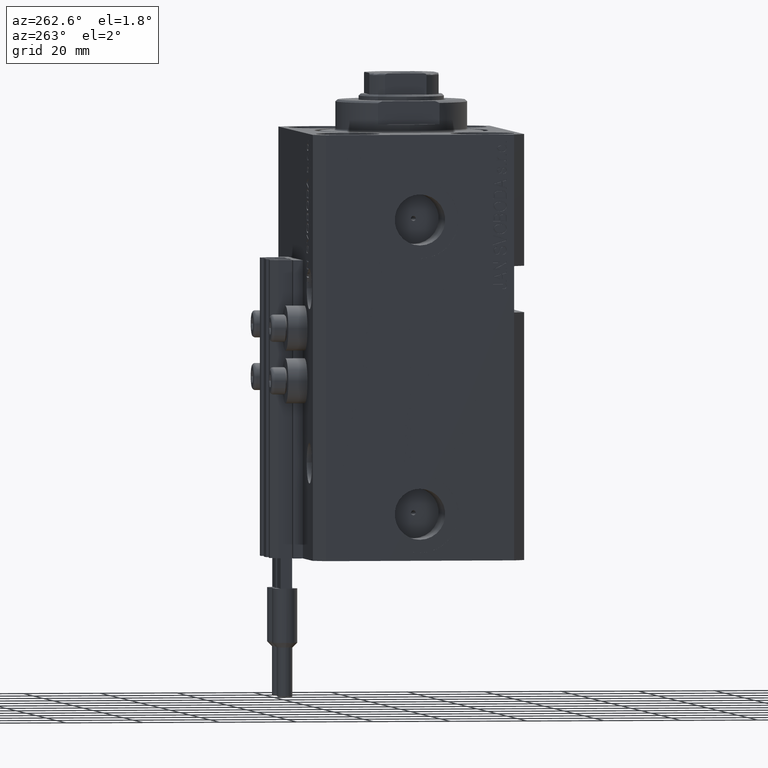
[diagram: clean part render]
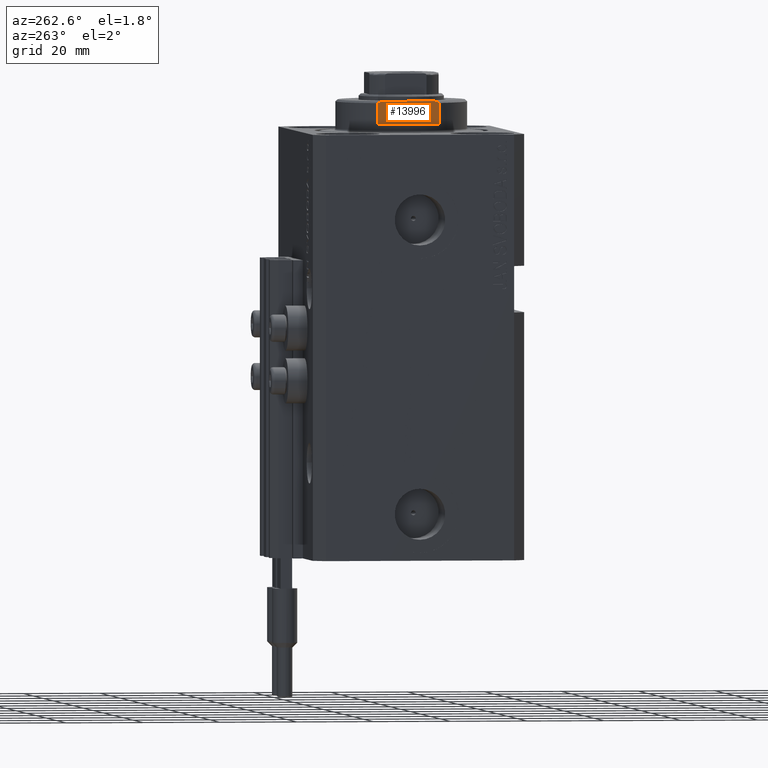
[diagram: same view with one face highlighted and labeled with its STEP entity id]
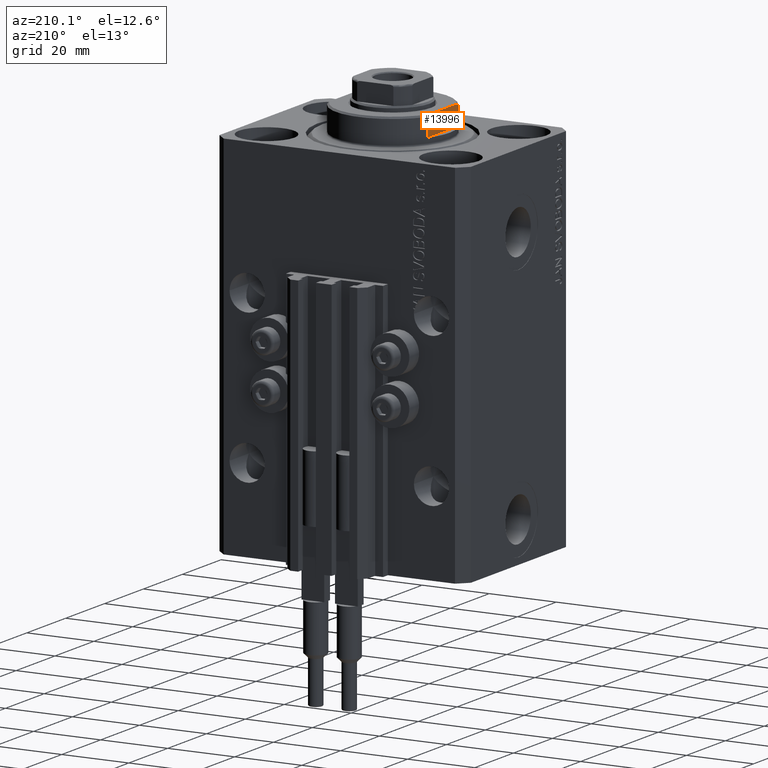
[diagram: same view with one face highlighted and labeled with its STEP entity id]
A machine part, auxiliary view. The second image highlights one B-rep face of the part: STEP entity #13996.
A second angle (auxiliary view) of the same face is appended — the face is thin or edge-on in the first view.
In plain terms, the highlighted planar face has unit normal (-1, 0, 0).
Its self-contained STEP definition (entity closure, byte-faithful):
#1637 = VERTEX_POINT ( 'NONE', #20136 ) ;
#2692 = VERTEX_POINT ( 'NONE', #41071 ) ;
#4328 = ORIENTED_EDGE ( 'NONE', *, *, #19285, .F. ) ;
#4678 = LINE ( 'NONE', #45575, #20527 ) ;
#4752 = CARTESIAN_POINT ( 'NONE',  ( 15.00000000000000000, -42.42640687119285303, -2.000000000000000000 ) ) ;
#5629 = LINE ( 'NONE', #11031, #27397 ) ;
#5700 = EDGE_CURVE ( 'NONE', #12038, #1637, #4678, .T. ) ;
#6044 = VECTOR ( 'NONE', #18223, 1000.000000000000000 ) ;
#7097 = CARTESIAN_POINT ( 'NONE',  ( 14.99999999999999645, 6.873863542433765517, -8.000000000000000000 ) ) ;
#8295 = ORIENTED_EDGE ( 'NONE', *, *, #46612, .F. ) ;
#8849 = VERTEX_POINT ( 'NONE', #39998 ) ;
#11031 = CARTESIAN_POINT ( 'NONE',  ( 15.00000000000000000, -42.42640687119285303, -8.000000000000000000 ) ) ;
#11435 = CARTESIAN_POINT ( 'NONE',  ( 15.00000000000000000, -8.000000000000001776, -7.500000000000007105 ) ) ;
#11914 = DIRECTION ( 'NONE',  ( -0.000000000000000000, 0.000000000000000000, -1.000000000000000000 ) ) ;
#12038 = VERTEX_POINT ( 'NONE', #41663 ) ;
#12286 = EDGE_CURVE ( 'NONE', #2692, #28336, #40872, .T. ) ;
#13768 = ORIENTED_EDGE ( 'NONE', *, *, #5700, .T. ) ;
#13996 = ADVANCED_FACE ( 'NONE', ( #38737 ), #15601, .T. ) ;
#14474 = B_SPLINE_CURVE_WITH_KNOTS ( 'NONE', 3,
 ( #33197, #41320, #26261, #7097 ),
 .UNSPECIFIED., .F., .F.,
 ( 4, 4 ),
 ( 0.03336039268697043453, 0.03459498301323849639 ),
 .UNSPECIFIED. ) ;
#15086 = EDGE_CURVE ( 'NONE', #1637, #2692, #23733, .T. ) ;
#15601 = PLANE ( 'NONE',  #19492 ) ;
#16600 = CARTESIAN_POINT ( 'NONE',  ( 15.00000000000000000, -42.42640687119285303, -2.000000000000000000 ) ) ;
#17723 = B_SPLINE_CURVE_WITH_KNOTS ( 'NONE', 3,
 ( #22756, #45421, #25944, #11435 ),
 .UNSPECIFIED., .F., .F.,
 ( 4, 4 ),
 ( 0.04875332532859059237, 0.04998905627745663105 ),
 .UNSPECIFIED. ) ;
#18223 = DIRECTION ( 'NONE',  ( 0.000000000000000000, 0.000000000000000000, -1.000000000000000000 ) ) ;
#19285 = EDGE_CURVE ( 'NONE', #8849, #44273, #5629, .T. ) ;
#19492 = AXIS2_PLACEMENT_3D ( 'NONE', #4752, #30606, #11914 ) ;
#20136 = CARTESIAN_POINT ( 'NONE',  ( 14.99999999999999645, 8.000000000000003553, -2.000000000000000000 ) ) ;
#20298 = EDGE_CURVE ( 'NONE', #12038, #8849, #14474, .T. ) ;
#20527 = VECTOR ( 'NONE', #30283, 1000.000000000000000 ) ;
#22734 = EDGE_LOOP ( 'NONE', ( #13768, #43662, #24546, #8295, #4328, #46303 ) ) ;
#22756 = CARTESIAN_POINT ( 'NONE',  ( 14.99999999999999645, -6.873863542433765517, -8.000000000000000000 ) ) ;
#23733 = LINE ( 'NONE', #16600, #36038 ) ;
#24546 = ORIENTED_EDGE ( 'NONE', *, *, #12286, .T. ) ;
#25944 = CARTESIAN_POINT ( 'NONE',  ( 15.00000000000000000, -7.629305121525812083, -7.674444648693743432 ) ) ;
#26261 = CARTESIAN_POINT ( 'NONE',  ( 15.00000000000000000, 7.253126193285932111, -7.842000017654665811 ) ) ;
#26787 = CARTESIAN_POINT ( 'NONE',  ( 15.00000000000000000, -8.000000000000001776, -8.000000000000000000 ) ) ;
#27397 = VECTOR ( 'NONE', #36643, 1000.000000000000000 ) ;
#28336 = VERTEX_POINT ( 'NONE', #29969 ) ;
#29969 = CARTESIAN_POINT ( 'NONE',  ( 15.00000000000000000, -8.000000000000001776, -7.500000000000007105 ) ) ;
#30283 = DIRECTION ( 'NONE',  ( -0.000000000000000000, -0.000000000000000000, 1.000000000000000000 ) ) ;
#30606 = DIRECTION ( 'NONE',  ( 1.000000000000000000, 0.000000000000000000, -0.000000000000000000 ) ) ;
#33197 = CARTESIAN_POINT ( 'NONE',  ( 15.00000000000000000, 8.000000000000001776, -7.500000000000007105 ) ) ;
#36038 = VECTOR ( 'NONE', #45667, 1000.000000000000000 ) ;
#36643 = DIRECTION ( 'NONE',  ( 0.000000000000000000, -1.000000000000000000, -0.000000000000000000 ) ) ;
#38737 = FACE_OUTER_BOUND ( 'NONE', #22734, .T. ) ;
#39998 = CARTESIAN_POINT ( 'NONE',  ( 14.99999999999999645, 6.873863542433765517, -8.000000000000000000 ) ) ;
#40872 = LINE ( 'NONE', #26787, #6044 ) ;
#41071 = CARTESIAN_POINT ( 'NONE',  ( 14.99999999999999645, -8.000000000000003553, -2.000000000000000000 ) ) ;
#41320 = CARTESIAN_POINT ( 'NONE',  ( 15.00000000000000000, 7.628315461082481264, -7.674910371255307062 ) ) ;
#41663 = CARTESIAN_POINT ( 'NONE',  ( 15.00000000000000000, 8.000000000000001776, -7.500000000000007105 ) ) ;
#42562 = CARTESIAN_POINT ( 'NONE',  ( 14.99999999999999645, -6.873863542433765517, -8.000000000000000000 ) ) ;
#43662 = ORIENTED_EDGE ( 'NONE', *, *, #15086, .T. ) ;
#44273 = VERTEX_POINT ( 'NONE', #42562 ) ;
#45421 = CARTESIAN_POINT ( 'NONE',  ( 15.00000000000000000, -7.254193676168129379, -7.841555306644510281 ) ) ;
#45575 = CARTESIAN_POINT ( 'NONE',  ( 15.00000000000000000, 8.000000000000001776, -8.000000000000000000 ) ) ;
#45667 = DIRECTION ( 'NONE',  ( 0.000000000000000000, -1.000000000000000000, -0.000000000000000000 ) ) ;
#46303 = ORIENTED_EDGE ( 'NONE', *, *, #20298, .F. ) ;
#46612 = EDGE_CURVE ( 'NONE', #44273, #28336, #17723, .T. ) ;